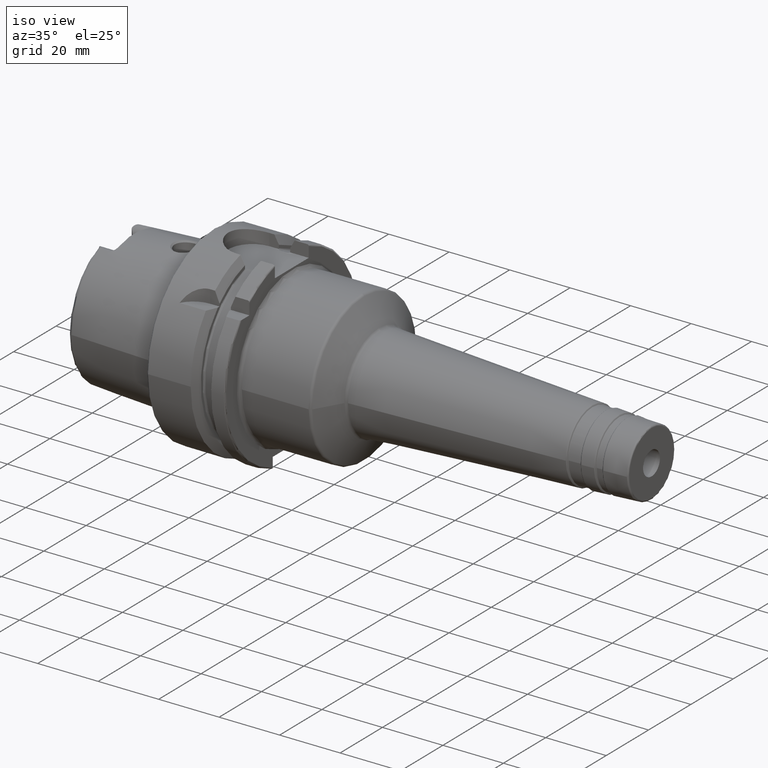
[diagram: clean part render]
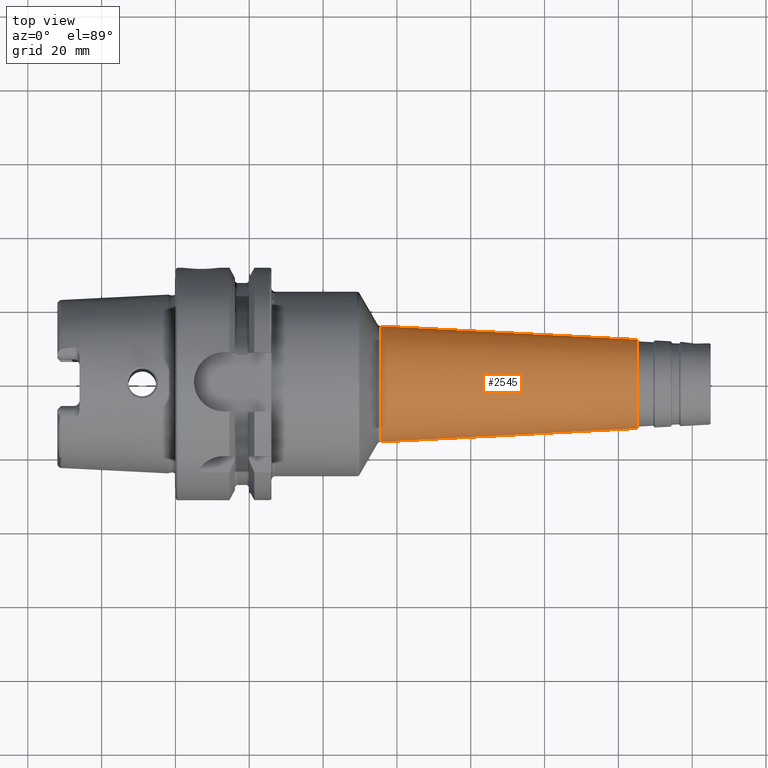
[diagram: tour spotlight — one face highlighted and labeled with its STEP entity id]
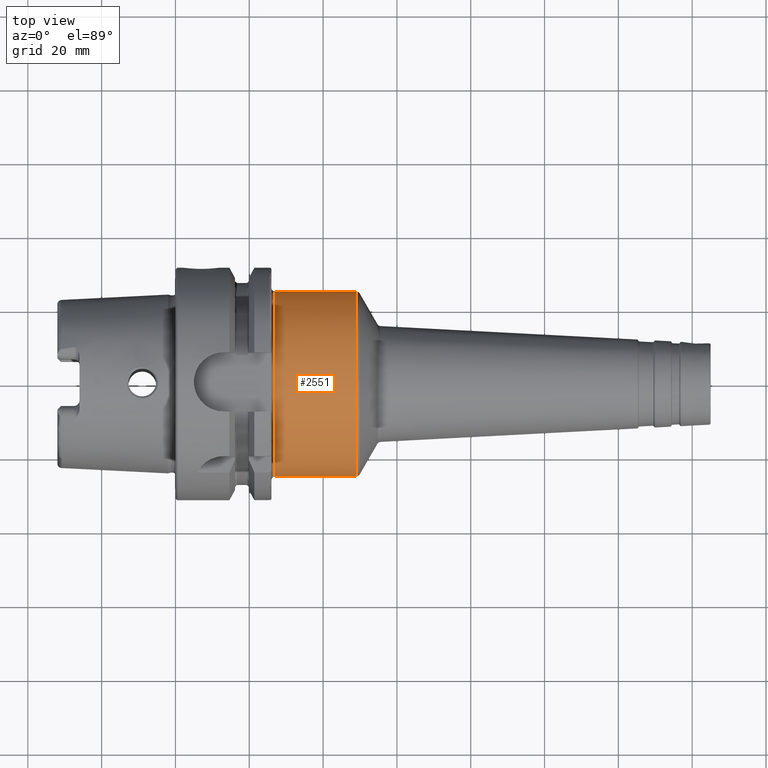
[diagram: tour spotlight — one face highlighted and labeled with its STEP entity id]
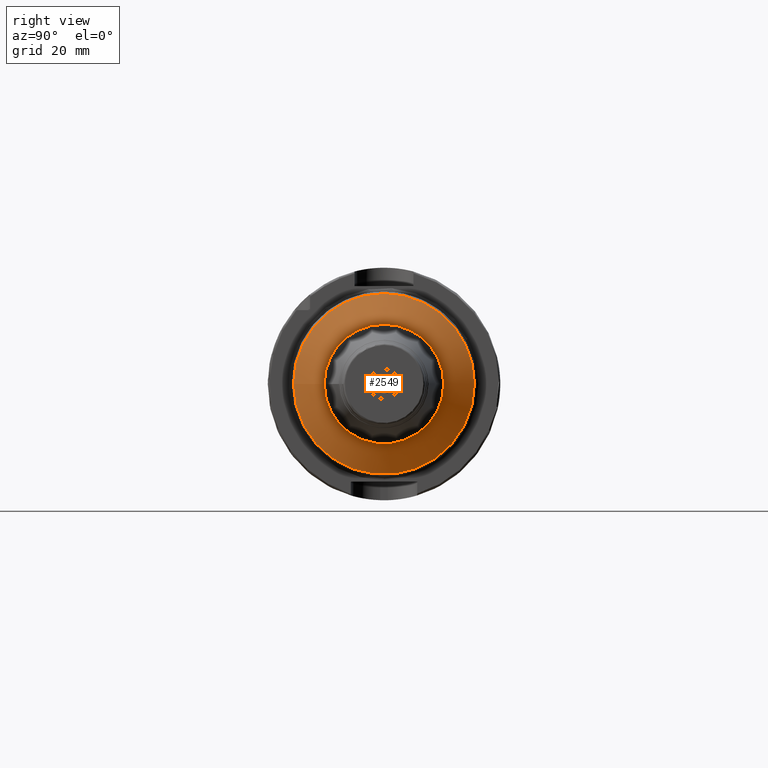
[diagram: tour spotlight — one face highlighted and labeled with its STEP entity id]
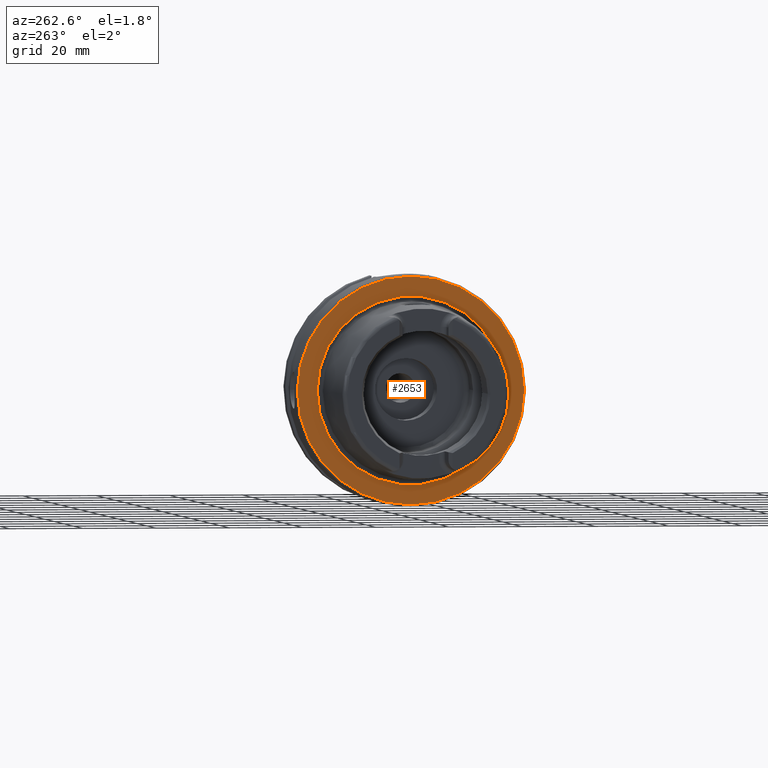
[diagram: tour spotlight — one face highlighted and labeled with its STEP entity id]
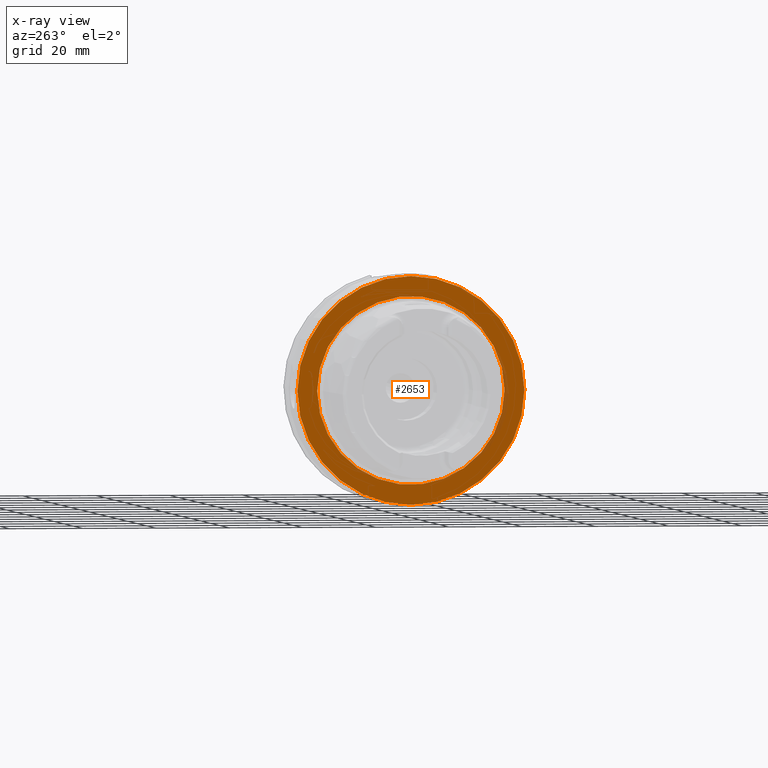
[diagram: x-ray of the same camera — body ghosted, this tour face saturated]
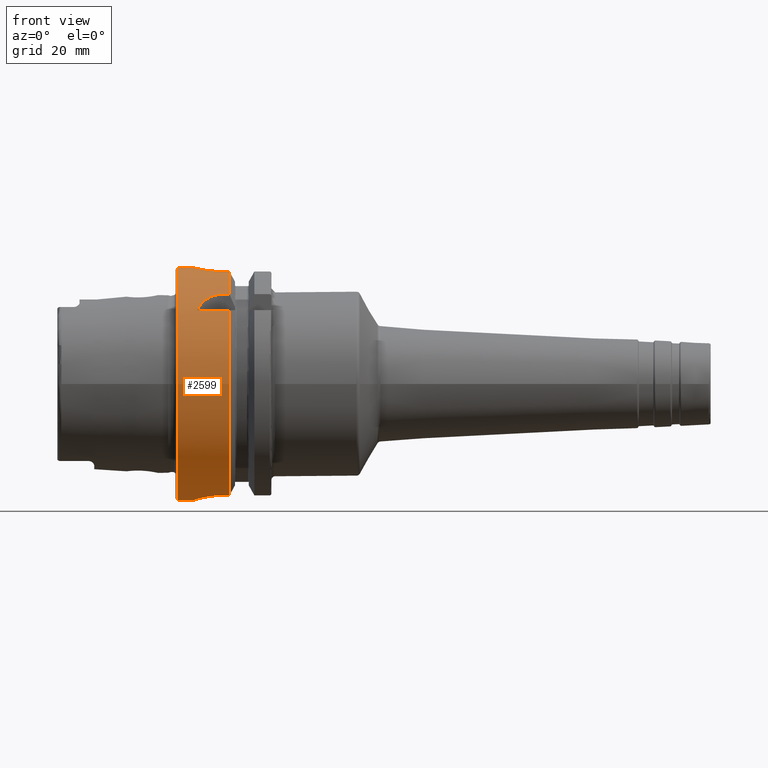
[diagram: tour spotlight — one face highlighted and labeled with its STEP entity id]
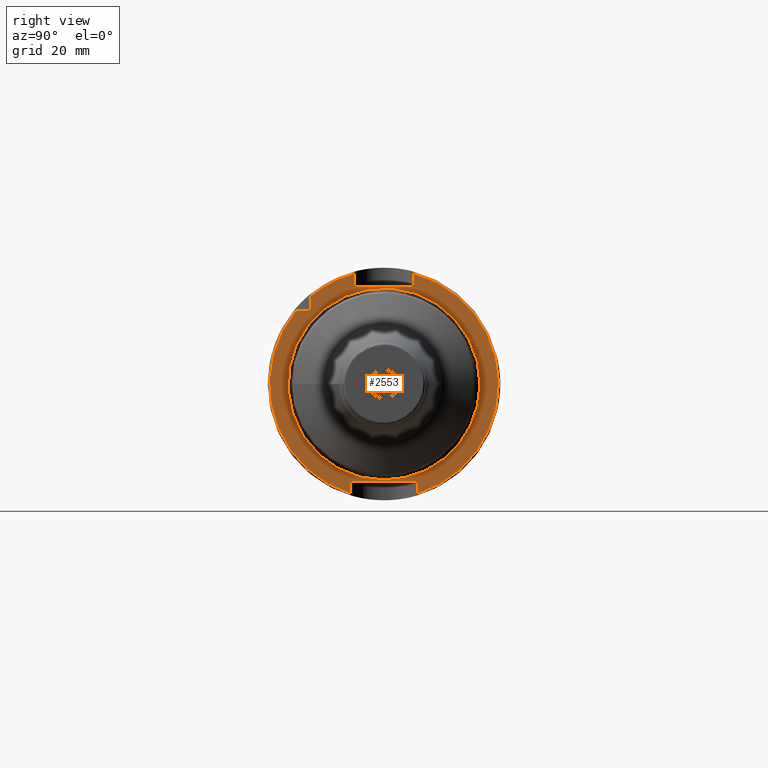
[diagram: tour spotlight — one face highlighted and labeled with its STEP entity id]
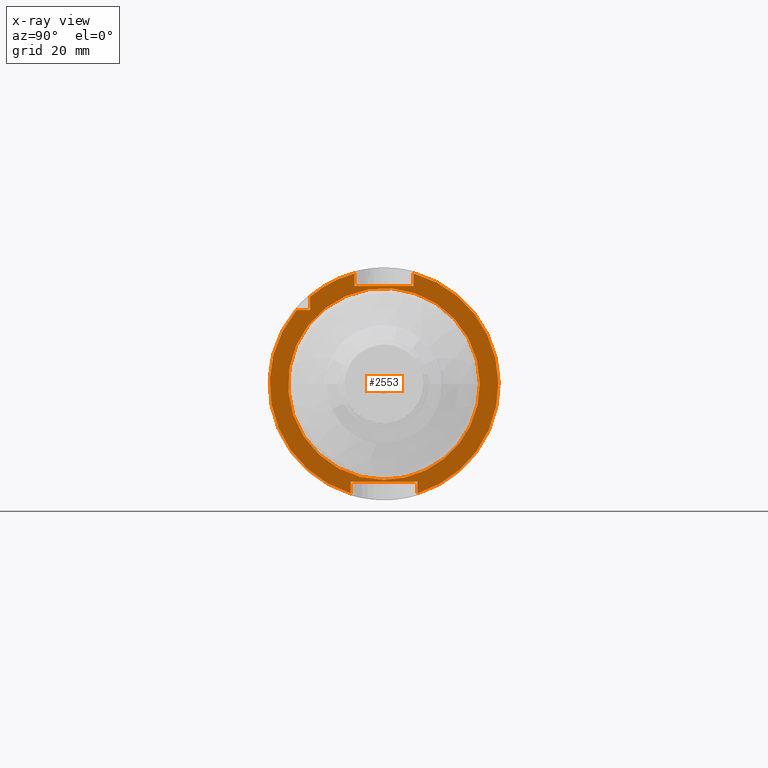
[diagram: x-ray of the same camera — body ghosted, this tour face saturated]
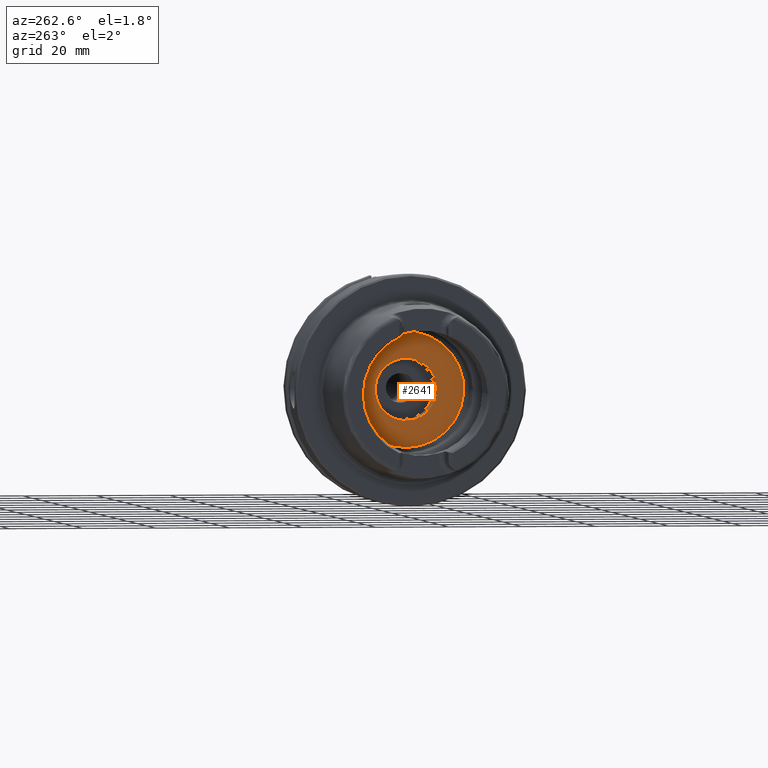
[diagram: tour spotlight — one face highlighted and labeled with its STEP entity id]
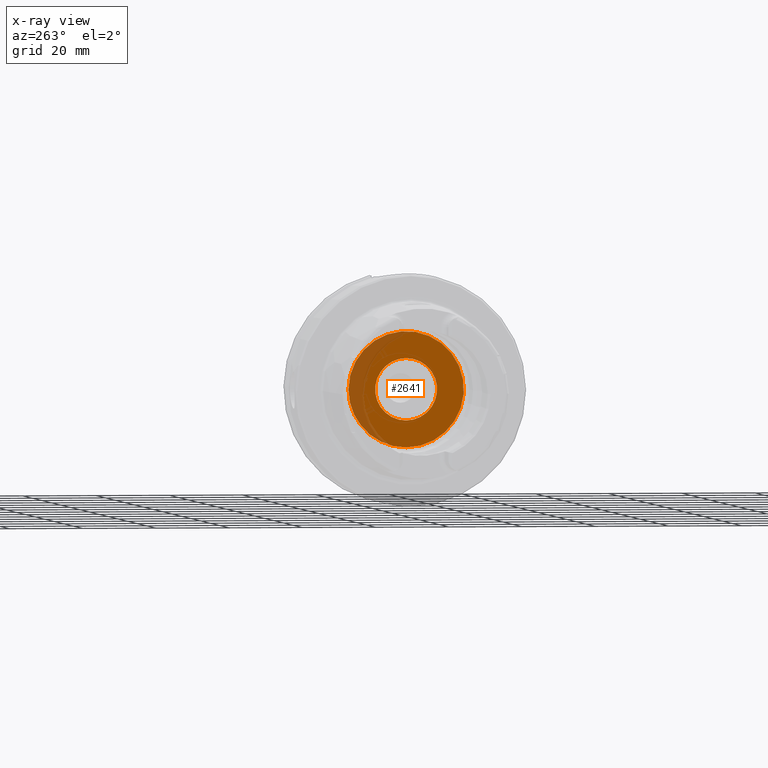
[diagram: x-ray of the same camera — body ghosted, this tour face saturated]
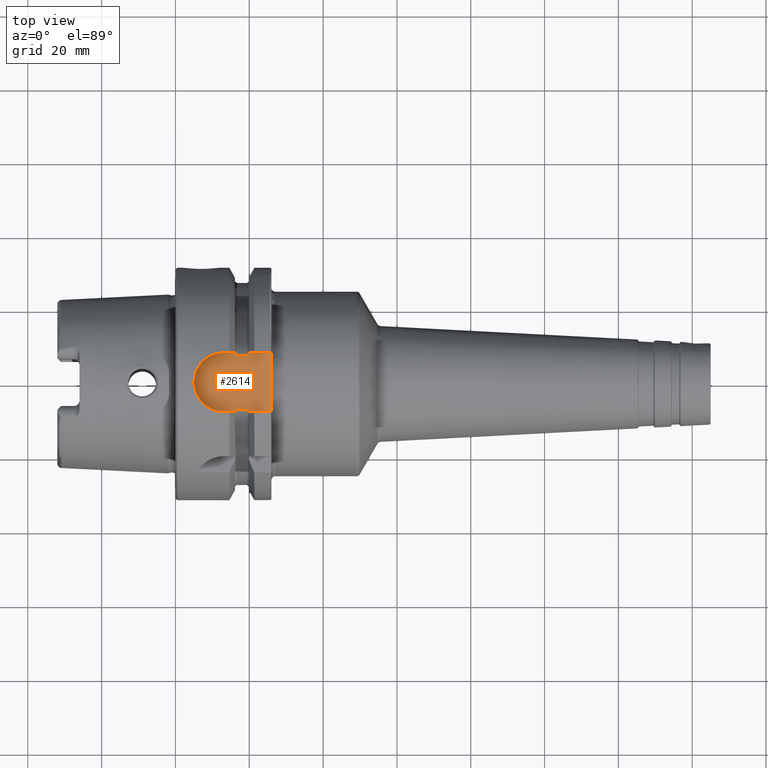
[diagram: tour spotlight — one face highlighted and labeled with its STEP entity id]
A machine part: a face-by-face anatomy tour. The part has 135 B-rep faces; the first image is the clean iso view, then the 8 largest visible faces are spotlighted one at a time (largest first), each with its STEP entity span.

Face 1 — top view, entity #2545. In plain terms, the highlighted conical surface has half-angle 3 deg.
Definition (entity closure, byte-faithful):
#192=CONICAL_SURFACE('',#2766,13.8757992308214,0.0523598775598299);
#226=FACE_OUTER_BOUND('',#361,.T.);
#361=EDGE_LOOP('',(#1799,#1800,#1801,#1802,#1803,#1804,#1805,#1806));
#499=LINE('',#4046,#616);
#616=VECTOR('',#3229,13.8757992308214);
#785=CIRCLE('',#2763,12.0469847975392);
#786=CIRCLE('',#2764,12.0469847975392);
#787=CIRCLE('',#2765,12.0469847975392);
#788=CIRCLE('',#2767,15.6882840297356);
#789=CIRCLE('',#2768,15.6882840297356);
#790=CIRCLE('',#2769,15.6882840297356);
#999=VERTEX_POINT('',#4037);
#1000=VERTEX_POINT('',#4039);
#1001=VERTEX_POINT('',#4041);
#1002=VERTEX_POINT('',#4045);
#1003=VERTEX_POINT('',#4047);
#1004=VERTEX_POINT('',#4049);
#1309=EDGE_CURVE('',#999,#1000,#785,.T.);
#1310=EDGE_CURVE('',#1000,#1001,#786,.T.);
#1311=EDGE_CURVE('',#1001,#999,#787,.T.);
#1312=EDGE_CURVE('',#1000,#1002,#499,.T.);
#1313=EDGE_CURVE('',#1003,#1002,#788,.T.);
#1314=EDGE_CURVE('',#1004,#1003,#789,.T.);
#1315=EDGE_CURVE('',#1002,#1004,#790,.T.);
#1799=ORIENTED_EDGE('',*,*,#1311,.F.);
#1800=ORIENTED_EDGE('',*,*,#1310,.F.);
#1801=ORIENTED_EDGE('',*,*,#1312,.T.);
#1802=ORIENTED_EDGE('',*,*,#1313,.F.);
#1803=ORIENTED_EDGE('',*,*,#1314,.F.);
#1804=ORIENTED_EDGE('',*,*,#1315,.F.);
#1805=ORIENTED_EDGE('',*,*,#1312,.F.);
#1806=ORIENTED_EDGE('',*,*,#1309,.F.);
#2545=ADVANCED_FACE('',(#226),#192,.T.);
#2763=AXIS2_PLACEMENT_3D('',#4040,#3221,#3222);
#2764=AXIS2_PLACEMENT_3D('',#4042,#3223,#3224);
#2765=AXIS2_PLACEMENT_3D('',#4043,#3225,#3226);
#2766=AXIS2_PLACEMENT_3D('',#4044,#3227,#3228);
#2767=AXIS2_PLACEMENT_3D('',#4048,#3230,#3231);
#2768=AXIS2_PLACEMENT_3D('',#4050,#3232,#3233);
#2769=AXIS2_PLACEMENT_3D('',#4051,#3234,#3235);
#3221=DIRECTION('center_axis',(1.,0.,0.));
#3222=DIRECTION('ref_axis',(0.,-1.,3.06161699786838E-17));
#3223=DIRECTION('center_axis',(1.,0.,0.));
#3224=DIRECTION('ref_axis',(0.,-1.,3.06161699786838E-17));
#3225=DIRECTION('center_axis',(1.,0.,0.));
#3226=DIRECTION('ref_axis',(0.,-1.,3.06161699786838E-17));
#3227=DIRECTION('center_axis',(-1.,0.,0.));
#3228=DIRECTION('ref_axis',(0.,1.,0.));
#3229=DIRECTION('',(-0.998629534754574,-0.0523359562429438,-6.40930612932371E-18));
#3230=DIRECTION('center_axis',(-1.,0.,0.));
#3231=DIRECTION('ref_axis',(0.,-1.,3.06161699786838E-17));
#3232=DIRECTION('center_axis',(-1.,0.,0.));
#3233=DIRECTION('ref_axis',(0.,-1.,3.06161699786838E-17));
#3234=DIRECTION('center_axis',(-1.,0.,0.));
#3235=DIRECTION('ref_axis',(0.,-1.,3.06161699786838E-17));
#4037=CARTESIAN_POINT('',(125.022339968181,-1.47533013716832E-15,12.0469847975392));
#4039=CARTESIAN_POINT('',(125.022339968181,-12.0469847975392,-1.47533013716832E-15));
#4040=CARTESIAN_POINT('Origin',(125.022339968181,0.,-1.8441626714604E-15));
#4041=CARTESIAN_POINT('',(125.022339968181,12.0469847975392,-7.3766506858416E-16));
#4042=CARTESIAN_POINT('Origin',(125.022339968181,0.,-1.8441626714604E-15));
#4043=CARTESIAN_POINT('Origin',(125.022339968181,0.,-1.8441626714604E-15));
#4044=CARTESIAN_POINT('Origin',(90.1264817902328,0.,0.));
#4045=CARTESIAN_POINT('',(55.5422115977223,-15.6882840297356,-1.92126068211302E-15));
#4046=CARTESIAN_POINT('',(90.1264817902328,-13.8757992308214,-1.69929531136368E-15));
#4047=CARTESIAN_POINT('',(55.5422115977223,15.6882840297356,-4.80315170528255E-15));
#4048=CARTESIAN_POINT('Origin',(55.5422115977223,0.,-2.40157585264128E-15));
#4049=CARTESIAN_POINT('',(55.5422115977223,-1.92126068211302E-15,15.6882840297356));
#4050=CARTESIAN_POINT('Origin',(55.5422115977223,0.,-2.40157585264128E-15));
#4051=CARTESIAN_POINT('Origin',(55.5422115977223,0.,-2.40157585264128E-15));

Face 2 — top view, entity #2551. In plain terms, the highlighted cylindrical surface (bore or boss wall) has radius 25 mm, axis along (1, 0, 0).
Definition (entity closure, byte-faithful):
#232=FACE_OUTER_BOUND('',#368,.T.);
#368=EDGE_LOOP('',(#1842,#1843,#1844,#1845,#1846,#1847,#1848,#1849));
#501=LINE('',#4089,#618);
#618=VECTOR('',#3281,25.);
#804=CIRCLE('',#2788,25.);
#805=CIRCLE('',#2789,25.);
#806=CIRCLE('',#2790,25.);
#807=CIRCLE('',#2792,25.);
#808=CIRCLE('',#2793,25.);
#809=CIRCLE('',#2794,25.);
#1015=VERTEX_POINT('',#4080);
#1016=VERTEX_POINT('',#4082);
#1017=VERTEX_POINT('',#4084);
#1018=VERTEX_POINT('',#4088);
#1019=VERTEX_POINT('',#4090);
#1020=VERTEX_POINT('',#4092);
#1330=EDGE_CURVE('',#1015,#1016,#804,.T.);
#1331=EDGE_CURVE('',#1016,#1017,#805,.T.);
#1332=EDGE_CURVE('',#1017,#1015,#806,.T.);
#1333=EDGE_CURVE('',#1016,#1018,#501,.T.);
#1334=EDGE_CURVE('',#1019,#1018,#807,.T.);
#1335=EDGE_CURVE('',#1020,#1019,#808,.T.);
#1336=EDGE_CURVE('',#1018,#1020,#809,.T.);
#1842=ORIENTED_EDGE('',*,*,#1332,.F.);
#1843=ORIENTED_EDGE('',*,*,#1331,.F.);
#1844=ORIENTED_EDGE('',*,*,#1333,.T.);
#1845=ORIENTED_EDGE('',*,*,#1334,.F.);
#1846=ORIENTED_EDGE('',*,*,#1335,.F.);
#1847=ORIENTED_EDGE('',*,*,#1336,.F.);
#1848=ORIENTED_EDGE('',*,*,#1333,.F.);
#1849=ORIENTED_EDGE('',*,*,#1330,.F.);
#2494=CYLINDRICAL_SURFACE('',#2791,25.);
#2551=ADVANCED_FACE('',(#232),#2494,.T.);
#2788=AXIS2_PLACEMENT_3D('',#4083,#3273,#3274);
#2789=AXIS2_PLACEMENT_3D('',#4085,#3275,#3276);
#2790=AXIS2_PLACEMENT_3D('',#4086,#3277,#3278);
#2791=AXIS2_PLACEMENT_3D('',#4087,#3279,#3280);
#2792=AXIS2_PLACEMENT_3D('',#4091,#3282,#3283);
#2793=AXIS2_PLACEMENT_3D('',#4093,#3284,#3285);
#2794=AXIS2_PLACEMENT_3D('',#4094,#3286,#3287);
#3273=DIRECTION('center_axis',(1.,0.,0.));
#3274=DIRECTION('ref_axis',(0.,-1.,1.83697019872103E-16));
#3275=DIRECTION('center_axis',(1.,0.,0.));
#3276=DIRECTION('ref_axis',(0.,-1.,1.83697019872103E-16));
#3277=DIRECTION('center_axis',(1.,0.,0.));
#3278=DIRECTION('ref_axis',(0.,-1.,1.83697019872103E-16));
#3279=DIRECTION('center_axis',(1.,0.,0.));
#3280=DIRECTION('ref_axis',(0.,1.,0.));
#3281=DIRECTION('',(-1.,0.,0.));
#3282=DIRECTION('center_axis',(-1.,0.,0.));
#3283=DIRECTION('ref_axis',(0.,-1.,-1.22464679914735E-16));
#3284=DIRECTION('center_axis',(-1.,0.,0.));
#3285=DIRECTION('ref_axis',(0.,-1.,-1.22464679914735E-16));
#3286=DIRECTION('center_axis',(-1.,0.,0.));
#3287=DIRECTION('ref_axis',(0.,-1.,-1.22464679914735E-16));
#4080=CARTESIAN_POINT('',(49.0629340550581,-3.06161699786838E-15,25.));
#4082=CARTESIAN_POINT('',(49.0629340550581,-25.,-3.06161699786838E-15));
#4083=CARTESIAN_POINT('Origin',(49.0629340550581,0.,0.));
#4084=CARTESIAN_POINT('',(49.0629340550581,25.,-1.53080849893419E-15));
#4085=CARTESIAN_POINT('Origin',(49.0629340550581,0.,0.));
#4086=CARTESIAN_POINT('Origin',(49.0629340550581,0.,0.));
#4087=CARTESIAN_POINT('Origin',(37.8201421621239,0.,0.));
#4088=CARTESIAN_POINT('',(27.,-25.,-3.06161699786838E-15));
#4089=CARTESIAN_POINT('',(37.8201421621239,-25.,-3.06161699786838E-15));
#4090=CARTESIAN_POINT('',(27.,-3.06161699786838E-15,-25.));
#4091=CARTESIAN_POINT('Origin',(27.,0.,0.));
#4092=CARTESIAN_POINT('',(27.,25.,0.));
#4093=CARTESIAN_POINT('Origin',(27.,0.,0.));
#4094=CARTESIAN_POINT('Origin',(27.,0.,0.));

Face 3 — right view, entity #2549. In plain terms, the highlighted conical surface has half-angle 60 deg.
Definition (entity closure, byte-faithful):
#193=CONICAL_SURFACE('',#2782,20.3583500677369,1.0471975511966);
#230=FACE_OUTER_BOUND('',#366,.T.);
#366=EDGE_LOOP('',(#1826,#1827,#1828,#1829,#1830,#1831,#1832,#1833));
#500=LINE('',#4073,#617);
#617=VECTOR('',#3262,20.3583500677369);
#796=CIRCLE('',#2778,16.1869135644901);
#798=CIRCLE('',#2780,16.1869135644901);
#799=CIRCLE('',#2781,16.1869135644901);
#800=CIRCLE('',#2783,24.5);
#801=CIRCLE('',#2784,24.5);
#802=CIRCLE('',#2785,24.5);
#1009=VERTEX_POINT('',#4064);
#1010=VERTEX_POINT('',#4065);
#1011=VERTEX_POINT('',#4068);
#1012=VERTEX_POINT('',#4072);
#1013=VERTEX_POINT('',#4074);
#1014=VERTEX_POINT('',#4076);
#1321=EDGE_CURVE('',#1009,#1010,#796,.T.);
#1323=EDGE_CURVE('',#1010,#1011,#798,.T.);
#1324=EDGE_CURVE('',#1011,#1009,#799,.T.);
#1325=EDGE_CURVE('',#1011,#1012,#500,.T.);
#1326=EDGE_CURVE('',#1013,#1012,#800,.T.);
#1327=EDGE_CURVE('',#1014,#1013,#801,.T.);
#1328=EDGE_CURVE('',#1012,#1014,#802,.T.);
#1826=ORIENTED_EDGE('',*,*,#1321,.F.);
#1827=ORIENTED_EDGE('',*,*,#1324,.F.);
#1828=ORIENTED_EDGE('',*,*,#1325,.T.);
#1829=ORIENTED_EDGE('',*,*,#1326,.F.);
#1830=ORIENTED_EDGE('',*,*,#1327,.F.);
#1831=ORIENTED_EDGE('',*,*,#1328,.F.);
#1832=ORIENTED_EDGE('',*,*,#1325,.F.);
#1833=ORIENTED_EDGE('',*,*,#1323,.F.);
#2549=ADVANCED_FACE('',(#230),#193,.T.);
#2778=AXIS2_PLACEMENT_3D('',#4066,#3252,#3253);
#2780=AXIS2_PLACEMENT_3D('',#4069,#3256,#3257);
#2781=AXIS2_PLACEMENT_3D('',#4070,#3258,#3259);
#2782=AXIS2_PLACEMENT_3D('',#4071,#3260,#3261);
#2783=AXIS2_PLACEMENT_3D('',#4075,#3263,#3264);
#2784=AXIS2_PLACEMENT_3D('',#4077,#3265,#3266);
#2785=AXIS2_PLACEMENT_3D('',#4078,#3267,#3268);
#3252=DIRECTION('center_axis',(1.,0.,0.));
#3253=DIRECTION('ref_axis',(0.,-1.,3.06161699786838E-17));
#3256=DIRECTION('center_axis',(1.,0.,0.));
#3257=DIRECTION('ref_axis',(0.,-1.,3.06161699786838E-17));
#3258=DIRECTION('center_axis',(1.,0.,0.));
#3259=DIRECTION('ref_axis',(0.,-1.,3.06161699786838E-17));
#3260=DIRECTION('center_axis',(-1.,0.,0.));
#3261=DIRECTION('ref_axis',(0.,1.,0.));
#3262=DIRECTION('',(-0.5,-0.866025403784438,-1.06057523872491E-16));
#3263=DIRECTION('center_axis',(-1.,0.,0.));
#3264=DIRECTION('ref_axis',(0.,-1.,3.06161699786838E-17));
#3265=DIRECTION('center_axis',(-1.,0.,0.));
#3266=DIRECTION('ref_axis',(0.,-1.,3.06161699786838E-17));
#3267=DIRECTION('center_axis',(-1.,0.,0.));
#3268=DIRECTION('ref_axis',(0.,-1.,3.06161699786838E-17));
#4064=CARTESIAN_POINT('',(54.7285221501808,16.1869135644901,-9.91162594241387E-16));
#4065=CARTESIAN_POINT('',(54.7285221501808,-1.98232518848277E-15,16.1869135644901));
#4066=CARTESIAN_POINT('Origin',(54.7285221501808,0.,-2.47790648560347E-15));
#4068=CARTESIAN_POINT('',(54.7285221501808,-16.1869135644901,-1.98232518848277E-15));
#4069=CARTESIAN_POINT('Origin',(54.7285221501808,0.,-2.47790648560347E-15));
#4070=CARTESIAN_POINT('Origin',(54.7285221501808,0.,-2.47790648560347E-15));
#4071=CARTESIAN_POINT('Origin',(52.3201421621239,0.,0.));
#4072=CARTESIAN_POINT('',(49.9289594588425,-24.5,-3.00038465791102E-15));
#4073=CARTESIAN_POINT('',(52.3201421621239,-20.3583500677369,-2.49317882463752E-15));
#4074=CARTESIAN_POINT('',(49.9289594588425,24.5,-7.50096164477754E-15));
#4075=CARTESIAN_POINT('Origin',(49.9289594588425,0.,-3.75048082238877E-15));
#4076=CARTESIAN_POINT('',(49.9289594588425,-3.00038465791102E-15,24.5));
#4077=CARTESIAN_POINT('Origin',(49.9289594588425,0.,-3.75048082238877E-15));
#4078=CARTESIAN_POINT('Origin',(49.9289594588425,0.,-3.75048082238877E-15));

Face 4 — auxiliary view, entity #2653. An x-ray twin of the same camera follows (body ghosted, this face saturated) — the face is partly hidden behind the body. In plain terms, the highlighted planar face has unit normal (-1, 0, 0).
Definition (entity closure, byte-faithful):
#107=FACE_BOUND('',#480,.T.);
#148=PLANE('',#3029);
#334=FACE_OUTER_BOUND('',#479,.T.);
#479=EDGE_LOOP('',(#2456,#2457));
#480=EDGE_LOOP('',(#2458,#2459));
#935=CIRCLE('',#3027,25.5879092835167);
#936=CIRCLE('',#3028,25.5879092835167);
#937=CIRCLE('',#3030,31.);
#938=CIRCLE('',#3031,31.);
#1231=VERTEX_POINT('',#5532);
#1232=VERTEX_POINT('',#5534);
#1233=VERTEX_POINT('',#5538);
#1234=VERTEX_POINT('',#5539);
#1644=EDGE_CURVE('',#1232,#1231,#935,.T.);
#1645=EDGE_CURVE('',#1231,#1232,#936,.T.);
#1646=EDGE_CURVE('',#1233,#1234,#937,.T.);
#1647=EDGE_CURVE('',#1234,#1233,#938,.T.);
#2456=ORIENTED_EDGE('',*,*,#1646,.F.);
#2457=ORIENTED_EDGE('',*,*,#1647,.F.);
#2458=ORIENTED_EDGE('',*,*,#1644,.T.);
#2459=ORIENTED_EDGE('',*,*,#1645,.T.);
#2653=ADVANCED_FACE('',(#334,#107),#148,.T.);
#3027=AXIS2_PLACEMENT_3D('',#5535,#3854,#3855);
#3028=AXIS2_PLACEMENT_3D('',#5536,#3856,#3857);
#3029=AXIS2_PLACEMENT_3D('',#5537,#3858,#3859);
#3030=AXIS2_PLACEMENT_3D('',#5540,#3860,#3861);
#3031=AXIS2_PLACEMENT_3D('',#5541,#3862,#3863);
#3854=DIRECTION('center_axis',(1.,0.,0.));
#3855=DIRECTION('ref_axis',(0.,0.,-1.));
#3856=DIRECTION('center_axis',(1.,0.,0.));
#3857=DIRECTION('ref_axis',(0.,0.,-1.));
#3858=DIRECTION('center_axis',(-1.,0.,0.));
#3859=DIRECTION('ref_axis',(0.,0.,1.));
#3860=DIRECTION('center_axis',(1.,0.,0.));
#3861=DIRECTION('ref_axis',(0.,0.,-1.));
#3862=DIRECTION('center_axis',(1.,0.,0.));
#3863=DIRECTION('ref_axis',(0.,0.,-1.));
#5532=CARTESIAN_POINT('',(-9.0205620750794E-16,-25.5879092835167,-3.13361512009315E-15));
#5534=CARTESIAN_POINT('',(0.,25.5879092835167,0.));
#5535=CARTESIAN_POINT('Origin',(0.,0.,0.));
#5536=CARTESIAN_POINT('Origin',(0.,0.,0.));
#5537=CARTESIAN_POINT('Origin',(0.,31.,0.));
#5538=CARTESIAN_POINT('',(0.,31.,0.));
#5539=CARTESIAN_POINT('',(-1.04083408558608E-15,-31.,-3.7964050773568E-15));
#5540=CARTESIAN_POINT('Origin',(0.,0.,0.));
#5541=CARTESIAN_POINT('Origin',(0.,0.,0.));

Face 5 — front view, entity #2599. In plain terms, the highlighted cylindrical surface (bore or boss wall) has radius 31.5 mm, axis along (1, 0, 0).
Definition (entity closure, byte-faithful):
#56=B_SPLINE_CURVE_WITH_KNOTS('',3,(#4848,#4849,#4850,#4851,#4852,#4853,
#4854,#4855,#4856,#4857,#4858,#4859,#4860,#4861,#4862,#4863,#4864,#4865,
#4866,#4867,#4868,#4869,#4870,#4871,#4872,#4873),.UNSPECIFIED.,.F.,.F.,
(4,2,2,2,2,2,2,2,2,2,2,2,4),(0.,0.188688694287611,0.377377388575223,0.56606194688798,
0.754746505200737,0.943431063513494,1.13211562182625,1.32080431611386,1.50949301040147,
1.69818170468908,1.8868703989767,2.07555495728945,2.26423951560221),
 .UNSPECIFIED.);
#57=B_SPLINE_CURVE_WITH_KNOTS('',3,(#4874,#4875,#4876,#4877,#4878,#4879,
#4880,#4881,#4882,#4883),.UNSPECIFIED.,.F.,.F.,(4,2,2,2,4),(2.26423951560221,
2.45292407391497,2.64160863222772,2.83029732651534,3.01898602080295),
 .UNSPECIFIED.);
#60=B_SPLINE_CURVE_WITH_KNOTS('',3,(#4939,#4940,#4941,#4942,#4943,#4944,
#4945,#4946,#4947,#4948,#4949,#4950),.UNSPECIFIED.,.F.,.F.,(4,2,2,2,2,4),
(1.1085154204615,1.31979218709236,1.52798350480179,1.73617482251122,1.90421770126337,
2.07226058001552),.UNSPECIFIED.);
#65=B_SPLINE_CURVE_WITH_KNOTS('',3,(#5055,#5056,#5057,#5058,#5059,#5060,
#5061,#5062,#5063,#5064),.UNSPECIFIED.,.F.,.F.,(4,2,2,2,4),(0.,0.30293011231322,
0.605860224626439,0.90976031392917,1.2136604032319),.UNSPECIFIED.);
#66=B_SPLINE_CURVE_WITH_KNOTS('',3,(#5076,#5077,#5078,#5079,#5080,#5081,
#5082,#5083,#5084,#5085),.UNSPECIFIED.,.F.,.F.,(4,2,2,2,4),(1.20927420824097,
1.5131742975437,1.81707438684643,2.12000449915965,2.42293461147287),
 .UNSPECIFIED.);
#74=B_SPLINE_CURVE_WITH_KNOTS('',3,(#5173,#5174,#5175,#5176,#5177,#5178,
#5179,#5180,#5181,#5182,#5183,#5184,#5185,#5186,#5187,#5188,#5189,#5190),
 .UNSPECIFIED.,.F.,.F.,(4,2,2,2,2,2,2,2,4),(0.,0.302805879979318,0.605611759958635,
0.908372461246501,1.21113316253437,1.51389386382223,1.8166545651101,2.11946044508942,
2.42226632506874),.UNSPECIFIED.);
#103=FACE_BOUND('',#422,.T.);
#280=FACE_OUTER_BOUND('',#421,.T.);
#421=EDGE_LOOP('',(#2146,#2147,#2148,#2149,#2150,#2151,#2152,#2153,#2154,
#2155,#2156,#2157,#2158,#2159,#2160,#2161,#2162,#2163,#2164));
#422=EDGE_LOOP('',(#2165,#2166));
#544=LINE('',#4914,#661);
#549=LINE('',#4959,#666);
#560=LINE('',#5047,#677);
#568=LINE('',#5113,#685);
#572=LINE('',#5171,#689);
#573=LINE('',#5192,#690);
#574=LINE('',#5195,#691);
#661=VECTOR('',#3498,10.);
#666=VECTOR('',#3509,10.);
#677=VECTOR('',#3556,10.);
#685=VECTOR('',#3580,10.);
#689=VECTOR('',#3590,10.);
#690=VECTOR('',#3591,10.);
#691=VECTOR('',#3594,31.5);
#861=CIRCLE('',#2887,31.5);
#862=CIRCLE('',#2888,31.5);
#869=CIRCLE('',#2903,31.5);
#871=CIRCLE('',#2910,31.5);
#872=CIRCLE('',#2911,31.5);
#873=CIRCLE('',#2912,31.5);
#874=CIRCLE('',#2913,31.5);
#1114=VERTEX_POINT('',#4845);
#1115=VERTEX_POINT('',#4847);
#1123=VERTEX_POINT('',#4911);
#1124=VERTEX_POINT('',#4913);
#1128=VERTEX_POINT('',#4938);
#1130=VERTEX_POINT('',#4955);
#1135=VERTEX_POINT('',#4971);
#1136=VERTEX_POINT('',#4973);
#1151=VERTEX_POINT('',#5044);
#1152=VERTEX_POINT('',#5046);
#1154=VERTEX_POINT('',#5054);
#1156=VERTEX_POINT('',#5069);
#1158=VERTEX_POINT('',#5075);
#1168=VERTEX_POINT('',#5168);
#1169=VERTEX_POINT('',#5170);
#1170=VERTEX_POINT('',#5172);
#1171=VERTEX_POINT('',#5191);
#1172=VERTEX_POINT('',#5194);
#1173=VERTEX_POINT('',#5196);
#1456=EDGE_CURVE('',#1115,#1114,#56,.T.);
#1457=EDGE_CURVE('',#1114,#1115,#57,.T.);
#1466=EDGE_CURVE('',#1124,#1123,#544,.T.);
#1472=EDGE_CURVE('',#1123,#1128,#60,.T.);
#1476=EDGE_CURVE('',#1128,#1130,#549,.T.);
#1482=EDGE_CURVE('',#1124,#1135,#861,.T.);
#1483=EDGE_CURVE('',#1135,#1136,#862,.T.);
#1504=EDGE_CURVE('',#1152,#1151,#560,.T.);
#1507=EDGE_CURVE('',#1151,#1154,#65,.T.);
#1510=EDGE_CURVE('',#1154,#1156,#869,.T.);
#1513=EDGE_CURVE('',#1156,#1158,#66,.T.);
#1521=EDGE_CURVE('',#1158,#1136,#568,.T.);
#1530=EDGE_CURVE('',#1168,#1130,#871,.T.);
#1531=EDGE_CURVE('',#1168,#1169,#572,.T.);
#1532=EDGE_CURVE('',#1169,#1170,#74,.T.);
#1533=EDGE_CURVE('',#1170,#1171,#573,.T.);
#1534=EDGE_CURVE('',#1152,#1171,#872,.T.);
#1535=EDGE_CURVE('',#1135,#1172,#574,.T.);
#1536=EDGE_CURVE('',#1172,#1173,#873,.T.);
#1537=EDGE_CURVE('',#1173,#1172,#874,.T.);
#2146=ORIENTED_EDGE('',*,*,#1476,.T.);
#2147=ORIENTED_EDGE('',*,*,#1530,.F.);
#2148=ORIENTED_EDGE('',*,*,#1531,.T.);
#2149=ORIENTED_EDGE('',*,*,#1532,.T.);
#2150=ORIENTED_EDGE('',*,*,#1533,.T.);
#2151=ORIENTED_EDGE('',*,*,#1534,.F.);
#2152=ORIENTED_EDGE('',*,*,#1504,.T.);
#2153=ORIENTED_EDGE('',*,*,#1507,.T.);
#2154=ORIENTED_EDGE('',*,*,#1510,.T.);
#2155=ORIENTED_EDGE('',*,*,#1513,.T.);
#2156=ORIENTED_EDGE('',*,*,#1521,.T.);
#2157=ORIENTED_EDGE('',*,*,#1483,.F.);
#2158=ORIENTED_EDGE('',*,*,#1535,.T.);
#2159=ORIENTED_EDGE('',*,*,#1536,.T.);
#2160=ORIENTED_EDGE('',*,*,#1537,.T.);
#2161=ORIENTED_EDGE('',*,*,#1535,.F.);
#2162=ORIENTED_EDGE('',*,*,#1482,.F.);
#2163=ORIENTED_EDGE('',*,*,#1466,.T.);
#2164=ORIENTED_EDGE('',*,*,#1472,.T.);
#2165=ORIENTED_EDGE('',*,*,#1456,.T.);
#2166=ORIENTED_EDGE('',*,*,#1457,.T.);
#2508=CYLINDRICAL_SURFACE('',#2909,31.5);
#2599=ADVANCED_FACE('',(#280,#103),#2508,.T.);
#2887=AXIS2_PLACEMENT_3D('',#4972,#3522,#3523);
#2888=AXIS2_PLACEMENT_3D('',#4974,#3524,#3525);
#2903=AXIS2_PLACEMENT_3D('',#5070,#3565,#3566);
#2909=AXIS2_PLACEMENT_3D('',#5167,#3586,#3587);
#2910=AXIS2_PLACEMENT_3D('',#5169,#3588,#3589);
#2911=AXIS2_PLACEMENT_3D('',#5193,#3592,#3593);
#2912=AXIS2_PLACEMENT_3D('',#5197,#3595,#3596);
#2913=AXIS2_PLACEMENT_3D('',#5198,#3597,#3598);
#3498=DIRECTION('',(-1.,0.,0.));
#3509=DIRECTION('',(1.,0.,0.));
#3522=DIRECTION('center_axis',(1.,0.,0.));
#3523=DIRECTION('ref_axis',(0.,0.,-1.));
#3524=DIRECTION('center_axis',(1.,0.,0.));
#3525=DIRECTION('ref_axis',(0.,0.,-1.));
#3556=DIRECTION('',(-1.,0.,0.));
#3565=DIRECTION('center_axis',(-1.,0.,0.));
#3566=DIRECTION('ref_axis',(0.,1.,0.));
#3580=DIRECTION('',(1.,0.,0.));
#3586=DIRECTION('center_axis',(1.,0.,0.));
#3587=DIRECTION('ref_axis',(0.,1.,0.));
#3588=DIRECTION('center_axis',(1.,0.,0.));
#3589=DIRECTION('ref_axis',(0.,0.,-1.));
#3590=DIRECTION('',(-1.,0.,0.));
#3591=DIRECTION('',(1.,0.,0.));
#3592=DIRECTION('center_axis',(1.,0.,0.));
#3593=DIRECTION('ref_axis',(0.,0.,-1.));
#3594=DIRECTION('',(-1.,0.,0.));
#3595=DIRECTION('center_axis',(1.,0.,0.));
#3596=DIRECTION('ref_axis',(0.,0.,-1.));
#3597=DIRECTION('center_axis',(1.,0.,0.));
#3598=DIRECTION('ref_axis',(0.,0.,-1.));
#4845=CARTESIAN_POINT('',(12.,31.5,-6.12323399573677E-16));
#4847=CARTESIAN_POINT('',(7.,31.100643080168,5.));
#4848=CARTESIAN_POINT('Ctrl Pts',(7.,31.100643080168,5.));
#4849=CARTESIAN_POINT('Ctrl Pts',(6.37103768570796,31.100643080168,5.));
#4850=CARTESIAN_POINT('Ctrl Pts',(5.70089281579202,31.1216953112949,4.87408354368814));
#4851=CARTESIAN_POINT('Ctrl Pts',(4.46931934300962,31.1973810209855,4.36348784122736));
#4852=CARTESIAN_POINT('Ctrl Pts',(3.90779781350673,31.2508828501623,3.97886562537221));
#4853=CARTESIAN_POINT('Ctrl Pts',(3.021144092268,31.3510329557602,3.09221190413348));
#4854=CARTESIAN_POINT('Ctrl Pts',(2.63651425348544,31.4042391414288,2.5306861925578));
#4855=CARTESIAN_POINT('Ctrl Pts',(2.12591301120586,31.4792463697936,1.29909839144709));
#4856=CARTESIAN_POINT('Ctrl Pts',(2.,31.5,0.62894852770919));
#4857=CARTESIAN_POINT('Ctrl Pts',(2.,31.5,-0.62894852770919));
#4858=CARTESIAN_POINT('Ctrl Pts',(2.12591301120586,31.4792463697936,-1.29909839144709));
#4859=CARTESIAN_POINT('Ctrl Pts',(2.63651425348544,31.4042391414288,-2.5306861925578));
#4860=CARTESIAN_POINT('Ctrl Pts',(3.021144092268,31.3510329557602,-3.09221190413348));
#4861=CARTESIAN_POINT('Ctrl Pts',(3.90779781350673,31.2508828501623,-3.97886562537221));
#4862=CARTESIAN_POINT('Ctrl Pts',(4.46931934300962,31.1973810209855,-4.36348784122736));
#4863=CARTESIAN_POINT('Ctrl Pts',(5.70089281579202,31.1216953112949,-4.87408354368814));
#4864=CARTESIAN_POINT('Ctrl Pts',(6.37103768570796,31.100643080168,-5.));
#4865=CARTESIAN_POINT('Ctrl Pts',(7.62896231429203,31.100643080168,-5.));
#4866=CARTESIAN_POINT('Ctrl Pts',(8.29910718420797,31.1216953112949,-4.87408354368814));
#4867=CARTESIAN_POINT('Ctrl Pts',(9.53068065699038,31.1973810209855,-4.36348784122736));
#4868=CARTESIAN_POINT('Ctrl Pts',(10.0922021864933,31.2508828501623,-3.97886562537221));
#4869=CARTESIAN_POINT('Ctrl Pts',(10.978855907732,31.3510329557602,-3.09221190413348));
#4870=CARTESIAN_POINT('Ctrl Pts',(11.3634857465146,31.4042391414288,-2.53068619255779));
#4871=CARTESIAN_POINT('Ctrl Pts',(11.8740869887941,31.4792463697936,-1.29909839144708));
#4872=CARTESIAN_POINT('Ctrl Pts',(12.,31.5,-0.62894852770919));
#4873=CARTESIAN_POINT('Ctrl Pts',(12.,31.5,-6.93889390390723E-16));
#4874=CARTESIAN_POINT('Ctrl Pts',(12.,31.5,-8.32667268468867E-16));
#4875=CARTESIAN_POINT('Ctrl Pts',(12.,31.5,0.628948527709188));
#4876=CARTESIAN_POINT('Ctrl Pts',(11.8740869887941,31.4792463697936,1.29909839144708));
#4877=CARTESIAN_POINT('Ctrl Pts',(11.3634857465146,31.4042391414288,2.53068619255779));
#4878=CARTESIAN_POINT('Ctrl Pts',(10.978855907732,31.3510329557602,3.09221190413348));
#4879=CARTESIAN_POINT('Ctrl Pts',(10.0922021864933,31.2508828501623,3.97886562537221));
#4880=CARTESIAN_POINT('Ctrl Pts',(9.53068065699038,31.1973810209855,4.36348784122736));
#4881=CARTESIAN_POINT('Ctrl Pts',(8.29910718420797,31.1216953112949,4.87408354368814));
#4882=CARTESIAN_POINT('Ctrl Pts',(7.62896231429203,31.100643080168,5.));
#4883=CARTESIAN_POINT('Ctrl Pts',(7.,31.100643080168,5.));
#4911=CARTESIAN_POINT('',(5.88828609634419,-24.3361870472759,20.));
#4913=CARTESIAN_POINT('',(14.6225009252407,-24.3361870472759,20.));
#4914=CARTESIAN_POINT('',(7.56125046262034,-24.3361870472759,20.));
#4938=CARTESIAN_POINT('',(13.,-20.,24.3361870472759));
#4939=CARTESIAN_POINT('Ctrl Pts',(5.88828609634419,-24.3361870472759,20.));
#4940=CARTESIAN_POINT('Ctrl Pts',(6.11069532820048,-23.9044753723342,20.5253108035937));
#4941=CARTESIAN_POINT('Ctrl Pts',(6.38325999044306,-23.4713523250807,21.0173865932788));
#4942=CARTESIAN_POINT('Ctrl Pts',(7.044898076458,-22.6317364276543,21.9186738868096));
#4943=CARTESIAN_POINT('Ctrl Pts',(7.46714468561685,-22.1861072682036,22.3682920878559));
#4944=CARTESIAN_POINT('Ctrl Pts',(8.46725531403812,-21.3767026700071,23.143042657319));
#4945=CARTESIAN_POINT('Ctrl Pts',(9.04646427720221,-21.0147449478223,23.4683362269255));
#4946=CARTESIAN_POINT('Ctrl Pts',(10.1145001432702,-20.5200081116516,23.9011603796022));
#4947=CARTESIAN_POINT('Ctrl Pts',(10.670823971716,-20.3234249831704,24.0673462447194));
#4948=CARTESIAN_POINT('Ctrl Pts',(11.8334528721306,-20.063121855676,24.2847667849476));
#4949=CARTESIAN_POINT('Ctrl Pts',(12.4398570708262,-20.,24.3361870472759));
#4950=CARTESIAN_POINT('Ctrl Pts',(13.,-20.,24.3361870472759));
#4955=CARTESIAN_POINT('',(14.6225009252407,-20.,24.3361870472759));
#4959=CARTESIAN_POINT('',(7.56125046262035,-20.,24.3361870472759));
#4971=CARTESIAN_POINT('',(14.6225009252407,-31.5,-3.85763741731416E-15));
#4972=CARTESIAN_POINT('Origin',(14.6225009252407,0.,0.));
#4973=CARTESIAN_POINT('',(14.6225009252407,-9.,-30.1869176962472));
#4974=CARTESIAN_POINT('Origin',(14.6225009252407,0.,0.));
#5044=CARTESIAN_POINT('',(13.,9.00000000000001,-30.1869176962472));
#5046=CARTESIAN_POINT('',(14.6225009252407,9.,-30.1869176962472));
#5047=CARTESIAN_POINT('',(7.56125046262035,9.00000000000001,-30.1869176962472));
#5054=CARTESIAN_POINT('',(5.,1.,-31.4841229828623));
#5055=CARTESIAN_POINT('Ctrl Pts',(13.,9.00000000000001,-30.1869176962472));
#5056=CARTESIAN_POINT('Ctrl Pts',(11.9902329589559,9.00000000000001,-30.1869176962472));
#5057=CARTESIAN_POINT('Ctrl Pts',(10.9171740660538,8.79719825889175,-30.2496070227108));
#5058=CARTESIAN_POINT('Ctrl Pts',(8.9496642215883,7.98063403850822,-30.4752177477269));
#5059=CARTESIAN_POINT('Ctrl Pts',(8.05472493283182,7.3671500962837,-30.6348764237341));
#5060=CARTESIAN_POINT('Ctrl Pts',(6.63955745341061,5.95454409907419,-30.9405445582004));
#5061=CARTESIAN_POINT('Ctrl Pts',(6.02370102555041,5.0583660804473,-31.1070804719497));
#5062=CARTESIAN_POINT('Ctrl Pts',(5.2037733306458,3.08756640398172,-31.3640631381934));
#5063=CARTESIAN_POINT('Ctrl Pts',(5.,2.01248971281588,-31.4519642432536));
#5064=CARTESIAN_POINT('Ctrl Pts',(5.,1.00000000000001,-31.4841229828623));
#5069=CARTESIAN_POINT('',(5.,-0.999999999999999,-31.4841229828623));
#5070=CARTESIAN_POINT('Origin',(5.,0.,0.));
#5075=CARTESIAN_POINT('',(13.,-9.,-30.1869176962472));
#5076=CARTESIAN_POINT('Ctrl Pts',(5.,-0.999999999999997,-31.4841229828623));
#5077=CARTESIAN_POINT('Ctrl Pts',(5.,-2.01248971281587,-31.4519642432536));
#5078=CARTESIAN_POINT('Ctrl Pts',(5.2037733306458,-3.08756640398171,-31.3640631381934));
#5079=CARTESIAN_POINT('Ctrl Pts',(6.02370102555041,-5.05836608044729,-31.1070804719497));
#5080=CARTESIAN_POINT('Ctrl Pts',(6.63955745341061,-5.95454409907418,-30.9405445582004));
#5081=CARTESIAN_POINT('Ctrl Pts',(8.05472493283182,-7.36715009628369,-30.6348764237341));
#5082=CARTESIAN_POINT('Ctrl Pts',(8.9496642215883,-7.98063403850821,-30.4752177477269));
#5083=CARTESIAN_POINT('Ctrl Pts',(10.9171740660538,-8.79719825889174,-30.2496070227108));
#5084=CARTESIAN_POINT('Ctrl Pts',(11.9902329589559,-9.,-30.1869176962472));
#5085=CARTESIAN_POINT('Ctrl Pts',(13.,-9.,-30.1869176962472));
#5113=CARTESIAN_POINT('',(7.56125046262035,-8.99999999999999,-30.1869176962472));
#5167=CARTESIAN_POINT('Origin',(7.56125046262035,0.,0.));
#5168=CARTESIAN_POINT('',(14.6225009252407,-8.,30.4671954731642));
#5169=CARTESIAN_POINT('Origin',(14.6225009252407,0.,0.));
#5170=CARTESIAN_POINT('',(13.,-8.,30.4671954731642));
#5171=CARTESIAN_POINT('',(7.56125046262035,-8.,30.4671954731642));
#5172=CARTESIAN_POINT('',(13.,8.,30.4671954731642));
#5173=CARTESIAN_POINT('Ctrl Pts',(13.,-8.,30.4671954731643));
#5174=CARTESIAN_POINT('Ctrl Pts',(11.9906470667356,-8.,30.4671954731643));
#5175=CARTESIAN_POINT('Ctrl Pts',(10.9172075930168,-7.79737202490167,30.5225803085525));
#5176=CARTESIAN_POINT('Ctrl Pts',(8.94758399331801,-6.97961067526075,30.719895002943));
#5177=CARTESIAN_POINT('Ctrl Pts',(8.05099322370438,-6.36470172268915,30.8586830127239));
#5178=CARTESIAN_POINT('Ctrl Pts',(6.63540388828045,-4.94911238726521,31.1170994373341));
#5179=CARTESIAN_POINT('Ctrl Pts',(6.02041263015313,-4.05247770930662,31.2539072689014));
#5180=CARTESIAN_POINT('Ctrl Pts',(5.20259114887399,-2.08269813865027,31.4466478906396));
#5181=CARTESIAN_POINT('Ctrl Pts',(5.,-1.00920233762622,31.5));
#5182=CARTESIAN_POINT('Ctrl Pts',(5.,1.00920233762622,31.5));
#5183=CARTESIAN_POINT('Ctrl Pts',(5.20259114887399,2.08269813865027,31.4466478906396));
#5184=CARTESIAN_POINT('Ctrl Pts',(6.02041263015313,4.05247770930662,31.2539072689014));
#5185=CARTESIAN_POINT('Ctrl Pts',(6.63540388828045,4.94911238726521,31.1170994373341));
#5186=CARTESIAN_POINT('Ctrl Pts',(8.05099322370439,6.36470172268915,30.8586830127239));
#5187=CARTESIAN_POINT('Ctrl Pts',(8.94758399331801,6.97961067526075,30.719895002943));
#5188=CARTESIAN_POINT('Ctrl Pts',(10.9172075930168,7.79737202490167,30.5225803085525));
#5189=CARTESIAN_POINT('Ctrl Pts',(11.9906470667356,8.,30.4671954731643));
#5190=CARTESIAN_POINT('Ctrl Pts',(13.,8.,30.4671954731643));
#5191=CARTESIAN_POINT('',(14.6225009252407,8.,30.4671954731642));
#5192=CARTESIAN_POINT('',(7.56125046262035,8.,30.4671954731642));
#5193=CARTESIAN_POINT('Origin',(14.6225009252407,0.,0.));
#5194=CARTESIAN_POINT('',(0.499999999999998,-31.5,-3.85763741731416E-15));
#5195=CARTESIAN_POINT('',(7.56125046262035,-31.5,-3.85763741731416E-15));
#5196=CARTESIAN_POINT('',(0.5,31.5,0.));
#5197=CARTESIAN_POINT('Origin',(0.499999999999998,0.,0.));
#5198=CARTESIAN_POINT('Origin',(0.499999999999998,0.,0.));

Face 6 — right view, entity #2553. An x-ray twin of the same camera follows (body ghosted, this face saturated) — the face is partly hidden behind the body. In plain terms, the highlighted planar face has unit normal (1, 0, 0).
Definition (entity closure, byte-faithful):
#98=FACE_BOUND('',#371,.T.);
#109=PLANE('',#2799);
#234=FACE_OUTER_BOUND('',#370,.T.);
#370=EDGE_LOOP('',(#1857,#1858,#1859,#1860,#1861,#1862,#1863,#1864,#1865,
#1866,#1867));
#371=EDGE_LOOP('',(#1868,#1869));
#502=LINE('',#4104,#619);
#503=LINE('',#4108,#620);
#504=LINE('',#4110,#621);
#505=LINE('',#4112,#622);
#506=LINE('',#4116,#623);
#507=LINE('',#4118,#624);
#508=LINE('',#4120,#625);
#509=LINE('',#4123,#626);
#619=VECTOR('',#3298,10.);
#620=VECTOR('',#3301,10.);
#621=VECTOR('',#3302,10.);
#622=VECTOR('',#3303,10.);
#623=VECTOR('',#3306,10.);
#624=VECTOR('',#3307,10.);
#625=VECTOR('',#3308,10.);
#626=VECTOR('',#3311,10.);
#811=CIRCLE('',#2797,26.);
#812=CIRCLE('',#2798,26.);
#813=CIRCLE('',#2800,31.);
#814=CIRCLE('',#2801,31.);
#815=CIRCLE('',#2802,31.);
#1021=VERTEX_POINT('',#4096);
#1022=VERTEX_POINT('',#4098);
#1023=VERTEX_POINT('',#4102);
#1024=VERTEX_POINT('',#4103);
#1025=VERTEX_POINT('',#4105);
#1026=VERTEX_POINT('',#4107);
#1027=VERTEX_POINT('',#4109);
#1028=VERTEX_POINT('',#4111);
#1029=VERTEX_POINT('',#4113);
#1030=VERTEX_POINT('',#4115);
#1031=VERTEX_POINT('',#4117);
#1032=VERTEX_POINT('',#4119);
#1033=VERTEX_POINT('',#4121);
#1338=EDGE_CURVE('',#1021,#1022,#811,.T.);
#1339=EDGE_CURVE('',#1022,#1021,#812,.T.);
#1340=EDGE_CURVE('',#1023,#1024,#502,.T.);
#1341=EDGE_CURVE('',#1024,#1025,#813,.T.);
#1342=EDGE_CURVE('',#1025,#1026,#503,.T.);
#1343=EDGE_CURVE('',#1026,#1027,#504,.T.);
#1344=EDGE_CURVE('',#1027,#1028,#505,.T.);
#1345=EDGE_CURVE('',#1028,#1029,#814,.T.);
#1346=EDGE_CURVE('',#1029,#1030,#506,.T.);
#1347=EDGE_CURVE('',#1030,#1031,#507,.T.);
#1348=EDGE_CURVE('',#1031,#1032,#508,.T.);
#1349=EDGE_CURVE('',#1032,#1033,#815,.T.);
#1350=EDGE_CURVE('',#1033,#1023,#509,.T.);
#1857=ORIENTED_EDGE('',*,*,#1340,.T.);
#1858=ORIENTED_EDGE('',*,*,#1341,.T.);
#1859=ORIENTED_EDGE('',*,*,#1342,.T.);
#1860=ORIENTED_EDGE('',*,*,#1343,.T.);
#1861=ORIENTED_EDGE('',*,*,#1344,.T.);
#1862=ORIENTED_EDGE('',*,*,#1345,.T.);
#1863=ORIENTED_EDGE('',*,*,#1346,.T.);
#1864=ORIENTED_EDGE('',*,*,#1347,.T.);
#1865=ORIENTED_EDGE('',*,*,#1348,.T.);
#1866=ORIENTED_EDGE('',*,*,#1349,.T.);
#1867=ORIENTED_EDGE('',*,*,#1350,.T.);
#1868=ORIENTED_EDGE('',*,*,#1339,.F.);
#1869=ORIENTED_EDGE('',*,*,#1338,.F.);
#2553=ADVANCED_FACE('',(#234,#98),#109,.T.);
#2797=AXIS2_PLACEMENT_3D('',#4099,#3292,#3293);
#2798=AXIS2_PLACEMENT_3D('',#4100,#3294,#3295);
#2799=AXIS2_PLACEMENT_3D('',#4101,#3296,#3297);
#2800=AXIS2_PLACEMENT_3D('',#4106,#3299,#3300);
#2801=AXIS2_PLACEMENT_3D('',#4114,#3304,#3305);
#2802=AXIS2_PLACEMENT_3D('',#4122,#3309,#3310);
#3292=DIRECTION('center_axis',(1.,0.,0.));
#3293=DIRECTION('ref_axis',(0.,-1.,-1.22464679914735E-16));
#3294=DIRECTION('center_axis',(1.,0.,0.));
#3295=DIRECTION('ref_axis',(0.,-1.,-1.22464679914735E-16));
#3296=DIRECTION('center_axis',(1.,0.,0.));
#3297=DIRECTION('ref_axis',(0.,0.,-1.));
#3298=DIRECTION('',(0.,-1.,0.));
#3299=DIRECTION('center_axis',(1.,0.,0.));
#3300=DIRECTION('ref_axis',(0.,0.,-1.));
#3301=DIRECTION('',(0.,0.,1.));
#3302=DIRECTION('',(0.,1.,0.));
#3303=DIRECTION('',(0.,0.,-1.));
#3304=DIRECTION('center_axis',(1.,0.,0.));
#3305=DIRECTION('ref_axis',(0.,0.,-1.));
#3306=DIRECTION('',(0.,0.,-1.));
#3307=DIRECTION('',(0.,-1.,0.));
#3308=DIRECTION('',(0.,0.,1.));
#3309=DIRECTION('center_axis',(1.,0.,0.));
#3310=DIRECTION('ref_axis',(0.,0.,-1.));
#3311=DIRECTION('',(0.,0.,-1.));
#4096=CARTESIAN_POINT('',(26.,-3.18408167778312E-15,-26.));
#4098=CARTESIAN_POINT('',(26.,26.,6.36816335556624E-15));
#4099=CARTESIAN_POINT('Origin',(26.,0.,0.));
#4100=CARTESIAN_POINT('Origin',(26.,0.,0.));
#4101=CARTESIAN_POINT('Origin',(26.,0.,0.));
#4102=CARTESIAN_POINT('',(26.,-20.,20.));
#4103=CARTESIAN_POINT('',(26.,-23.685438564654,20.));
#4104=CARTESIAN_POINT('',(26.,-12.,20.));
#4105=CARTESIAN_POINT('',(26.,-9.,-29.6647939483827));
#4106=CARTESIAN_POINT('Origin',(26.,0.,0.));
#4107=CARTESIAN_POINT('',(26.,-9.,-26.5));
#4108=CARTESIAN_POINT('',(26.,-9.,-13.25));
#4109=CARTESIAN_POINT('',(26.,9.,-26.5));
#4110=CARTESIAN_POINT('',(26.,1.94289029309402E-15,-26.5));
#4111=CARTESIAN_POINT('',(26.,9.,-29.6647939483827));
#4112=CARTESIAN_POINT('',(26.,9.,-13.25));
#4113=CARTESIAN_POINT('',(26.,8.,29.9499582637439));
#4114=CARTESIAN_POINT('Origin',(26.,0.,0.));
#4115=CARTESIAN_POINT('',(26.,8.,26.5));
#4116=CARTESIAN_POINT('',(26.,8.,13.25));
#4117=CARTESIAN_POINT('',(26.,-8.,26.5));
#4118=CARTESIAN_POINT('',(26.,5.55111512312578E-16,26.5));
#4119=CARTESIAN_POINT('',(26.,-8.,29.9499582637439));
#4120=CARTESIAN_POINT('',(26.,-8.,13.25));
#4121=CARTESIAN_POINT('',(26.,-20.,23.685438564654));
#4122=CARTESIAN_POINT('Origin',(26.,0.,0.));
#4123=CARTESIAN_POINT('',(26.,-20.,10.));

Face 7 — auxiliary view, entity #2641. An x-ray twin of the same camera follows (body ghosted, this face saturated) — the face is partly hidden behind the body. In plain terms, the highlighted planar face has unit normal (1, 0, 0).
Definition (entity closure, byte-faithful):
#105=FACE_BOUND('',#466,.T.);
#146=PLANE('',#2990);
#322=FACE_OUTER_BOUND('',#465,.T.);
#465=EDGE_LOOP('',(#2376,#2377));
#466=EDGE_LOOP('',(#2378,#2379));
#905=CIRCLE('',#2984,8.458734);
#906=CIRCLE('',#2985,8.458734);
#910=CIRCLE('',#2991,15.75);
#911=CIRCLE('',#2992,15.75);
#1205=VERTEX_POINT('',#5457);
#1206=VERTEX_POINT('',#5458);
#1210=VERTEX_POINT('',#5470);
#1211=VERTEX_POINT('',#5471);
#1607=EDGE_CURVE('',#1205,#1206,#905,.T.);
#1608=EDGE_CURVE('',#1206,#1205,#906,.T.);
#1613=EDGE_CURVE('',#1210,#1211,#910,.T.);
#1614=EDGE_CURVE('',#1211,#1210,#911,.T.);
#2376=ORIENTED_EDGE('',*,*,#1613,.T.);
#2377=ORIENTED_EDGE('',*,*,#1614,.T.);
#2378=ORIENTED_EDGE('',*,*,#1607,.T.);
#2379=ORIENTED_EDGE('',*,*,#1608,.T.);
#2641=ADVANCED_FACE('',(#322,#105),#146,.F.);
#2984=AXIS2_PLACEMENT_3D('',#5459,#3761,#3762);
#2985=AXIS2_PLACEMENT_3D('',#5460,#3763,#3764);
#2990=AXIS2_PLACEMENT_3D('',#5469,#3774,#3775);
#2991=AXIS2_PLACEMENT_3D('',#5472,#3776,#3777);
#2992=AXIS2_PLACEMENT_3D('',#5473,#3778,#3779);
#3761=DIRECTION('center_axis',(1.,0.,0.));
#3762=DIRECTION('ref_axis',(0.,0.,1.));
#3763=DIRECTION('center_axis',(1.,0.,0.));
#3764=DIRECTION('ref_axis',(0.,0.,1.));
#3774=DIRECTION('center_axis',(1.,0.,0.));
#3775=DIRECTION('ref_axis',(0.,0.,-1.));
#3776=DIRECTION('center_axis',(-1.,0.,0.));
#3777=DIRECTION('ref_axis',(0.,0.,1.));
#3778=DIRECTION('center_axis',(-1.,0.,0.));
#3779=DIRECTION('ref_axis',(0.,0.,1.));
#5457=CARTESIAN_POINT('',(10.,0.,8.458734));
#5458=CARTESIAN_POINT('',(10.,-1.03589615179389E-15,-8.458734));
#5459=CARTESIAN_POINT('Origin',(10.,0.,0.));
#5460=CARTESIAN_POINT('Origin',(10.,0.,0.));
#5469=CARTESIAN_POINT('Origin',(10.,15.75,0.));
#5470=CARTESIAN_POINT('',(10.,15.75,0.));
#5471=CARTESIAN_POINT('',(10.,-1.92881870865708E-15,-15.75));
#5472=CARTESIAN_POINT('Origin',(10.,0.,0.));
#5473=CARTESIAN_POINT('Origin',(10.,0.,0.));

Face 8 — top view, entity #2614. In plain terms, the highlighted planar face has unit normal (0, 0, 1).
Definition (entity closure, byte-faithful):
#75=B_SPLINE_CURVE_WITH_KNOTS('',3,(#5219,#5220,#5221,#5222,#5223,#5224,
#5225,#5226,#5227,#5228),.UNSPECIFIED.,.F.,.F.,(4,2,2,2,4),(0.328785692776271,
0.334026201575553,0.340879824321645,0.368343350403883,0.404857107979834),
 .UNSPECIFIED.);
#78=B_SPLINE_CURVE_WITH_KNOTS('',3,(#5250,#5251,#5252,#5253,#5254,#5255,
#5256,#5257,#5258,#5259),.UNSPECIFIED.,.F.,.F.,(4,2,2,2,4),(0.252714277572707,
0.289228035148658,0.316691561230897,0.323545183976988,0.32878569277627),
 .UNSPECIFIED.);
#82=B_SPLINE_CURVE_WITH_KNOTS('',3,(#5309,#5310,#5311,#5312,#5313,#5314,
#5315,#5316,#5317,#5318),.UNSPECIFIED.,.F.,.F.,(4,2,2,2,4),(0.32878569277627,
0.334026201575552,0.340879824321644,0.368343350403882,0.404857107979833),
 .UNSPECIFIED.);
#83=B_SPLINE_CURVE_WITH_KNOTS('',3,(#5321,#5322,#5323,#5324,#5325,#5326,
#5327,#5328,#5329,#5330),.UNSPECIFIED.,.F.,.F.,(4,2,2,2,4),(0.252714277572707,
0.289228035148658,0.316691561230897,0.323545183976989,0.328785692776271),
 .UNSPECIFIED.);
#138=PLANE('',#2935);
#295=FACE_OUTER_BOUND('',#437,.T.);
#437=EDGE_LOOP('',(#2237,#2238,#2239,#2240,#2241,#2242,#2243,#2244,#2245,
#2246,#2247,#2248));
#507=LINE('',#4118,#624);
#576=LINE('',#5241,#693);
#577=LINE('',#5261,#694);
#578=LINE('',#5264,#695);
#583=LINE('',#5297,#700);
#584=LINE('',#5300,#701);
#585=LINE('',#5320,#702);
#624=VECTOR('',#3307,10.);
#693=VECTOR('',#3628,10.);
#694=VECTOR('',#3633,10.);
#695=VECTOR('',#3636,10.);
#700=VECTOR('',#3647,10.);
#701=VECTOR('',#3650,10.);
#702=VECTOR('',#3653,10.);
#881=CIRCLE('',#2932,8.);
#1030=VERTEX_POINT('',#4115);
#1031=VERTEX_POINT('',#4117);
#1176=VERTEX_POINT('',#5216);
#1177=VERTEX_POINT('',#5218);
#1178=VERTEX_POINT('',#5239);
#1179=VERTEX_POINT('',#5243);
#1180=VERTEX_POINT('',#5263);
#1181=VERTEX_POINT('',#5267);
#1186=VERTEX_POINT('',#5290);
#1187=VERTEX_POINT('',#5299);
#1188=VERTEX_POINT('',#5308);
#1189=VERTEX_POINT('',#5319);
#1347=EDGE_CURVE('',#1030,#1031,#507,.T.);
#1545=EDGE_CURVE('',#1176,#1177,#75,.T.);
#1549=EDGE_CURVE('',#1178,#1176,#576,.T.);
#1551=EDGE_CURVE('',#1179,#1178,#78,.T.);
#1552=EDGE_CURVE('',#1179,#1031,#577,.T.);
#1553=EDGE_CURVE('',#1180,#1177,#578,.T.);
#1555=EDGE_CURVE('',#1181,#1180,#881,.T.);
#1562=EDGE_CURVE('',#1030,#1186,#583,.T.);
#1563=EDGE_CURVE('',#1187,#1181,#584,.T.);
#1565=EDGE_CURVE('',#1188,#1186,#82,.T.);
#1566=EDGE_CURVE('',#1189,#1188,#585,.T.);
#1567=EDGE_CURVE('',#1187,#1189,#83,.T.);
#2237=ORIENTED_EDGE('',*,*,#1545,.F.);
#2238=ORIENTED_EDGE('',*,*,#1549,.F.);
#2239=ORIENTED_EDGE('',*,*,#1551,.F.);
#2240=ORIENTED_EDGE('',*,*,#1552,.T.);
#2241=ORIENTED_EDGE('',*,*,#1347,.F.);
#2242=ORIENTED_EDGE('',*,*,#1562,.T.);
#2243=ORIENTED_EDGE('',*,*,#1565,.F.);
#2244=ORIENTED_EDGE('',*,*,#1566,.F.);
#2245=ORIENTED_EDGE('',*,*,#1567,.F.);
#2246=ORIENTED_EDGE('',*,*,#1563,.T.);
#2247=ORIENTED_EDGE('',*,*,#1555,.T.);
#2248=ORIENTED_EDGE('',*,*,#1553,.T.);
#2614=ADVANCED_FACE('',(#295),#138,.T.);
#2932=AXIS2_PLACEMENT_3D('',#5268,#3640,#3641);
#2935=AXIS2_PLACEMENT_3D('',#5307,#3651,#3652);
#3307=DIRECTION('',(0.,-1.,0.));
#3628=DIRECTION('',(-1.,0.,0.));
#3633=DIRECTION('',(1.,3.41607084500048E-16,0.));
#3636=DIRECTION('',(1.,3.41607084500048E-16,0.));
#3640=DIRECTION('center_axis',(0.,0.,1.));
#3641=DIRECTION('ref_axis',(0.,1.,0.));
#3647=DIRECTION('',(-1.,-2.56205313375036E-16,0.));
#3650=DIRECTION('',(-1.,-2.56205313375036E-16,0.));
#3651=DIRECTION('center_axis',(0.,0.,1.));
#3652=DIRECTION('ref_axis',(1.,0.,0.));
#3653=DIRECTION('',(1.,0.,0.));
#4115=CARTESIAN_POINT('',(26.,8.,26.5));
#4117=CARTESIAN_POINT('',(26.,-8.,26.5));
#4118=CARTESIAN_POINT('',(26.,5.55111512312578E-16,26.5));
#5216=CARTESIAN_POINT('',(16.625,-7.34846922834952,26.5));
#5218=CARTESIAN_POINT('',(16.2397987608563,-8.,26.5));
#5219=CARTESIAN_POINT('Ctrl Pts',(16.625,-7.34846922834952,26.5));
#5220=CARTESIAN_POINT('Ctrl Pts',(16.6075316373357,-7.34846922834952,26.5));
#5221=CARTESIAN_POINT('Ctrl Pts',(16.587038394856,-7.35287762173868,26.5));
#5222=CARTESIAN_POINT('Ctrl Pts',(16.5496994821687,-7.36807649661538,26.5));
#5223=CARTESIAN_POINT('Ctrl Pts',(16.5270295504762,-7.38349170057081,26.5));
#5224=CARTESIAN_POINT('Ctrl Pts',(16.4411490019356,-7.4590543697872,26.5));
#5225=CARTESIAN_POINT('Ctrl Pts',(16.3906456489289,-7.5566112023157,26.5));
#5226=CARTESIAN_POINT('Ctrl Pts',(16.3063113289614,-7.75248496685372,26.5));
#5227=CARTESIAN_POINT('Ctrl Pts',(16.2699372185845,-7.87398729043679,26.5));
#5228=CARTESIAN_POINT('Ctrl Pts',(16.2397987608563,-8.,26.5));
#5239=CARTESIAN_POINT('',(19.375,-7.34846922834952,26.5));
#5241=CARTESIAN_POINT('',(18.,-7.34846922834952,26.5));
#5243=CARTESIAN_POINT('',(19.7602012391436,-8.,26.5));
#5250=CARTESIAN_POINT('Ctrl Pts',(19.7602012391436,-8.,26.5));
#5251=CARTESIAN_POINT('Ctrl Pts',(19.7300627814155,-7.87398729043679,26.5));
#5252=CARTESIAN_POINT('Ctrl Pts',(19.6936886710386,-7.75248496685372,26.5));
#5253=CARTESIAN_POINT('Ctrl Pts',(19.6093543510711,-7.5566112023157,26.5));
#5254=CARTESIAN_POINT('Ctrl Pts',(19.5588509980644,-7.45905436978719,26.5));
#5255=CARTESIAN_POINT('Ctrl Pts',(19.4729704495238,-7.38349170057082,26.5));
#5256=CARTESIAN_POINT('Ctrl Pts',(19.4503005178313,-7.3680764966154,26.5));
#5257=CARTESIAN_POINT('Ctrl Pts',(19.412961605144,-7.35287762173869,26.5));
#5258=CARTESIAN_POINT('Ctrl Pts',(19.3924683626643,-7.34846922834952,26.5));
#5259=CARTESIAN_POINT('Ctrl Pts',(19.375,-7.34846922834952,26.5));
#5261=CARTESIAN_POINT('',(13.,-8.,26.5));
#5263=CARTESIAN_POINT('',(13.,-8.,26.5));
#5264=CARTESIAN_POINT('',(13.,-8.,26.5));
#5267=CARTESIAN_POINT('',(13.,8.,26.5));
#5268=CARTESIAN_POINT('Origin',(13.,0.,26.5));
#5290=CARTESIAN_POINT('',(19.7602012391436,8.,26.5));
#5297=CARTESIAN_POINT('',(26.,8.,26.5));
#5299=CARTESIAN_POINT('',(16.2397987608563,8.,26.5));
#5300=CARTESIAN_POINT('',(26.,8.,26.5));
#5307=CARTESIAN_POINT('Origin',(15.5,1.11022302462516E-15,26.5));
#5308=CARTESIAN_POINT('',(19.375,7.34846922834952,26.5));
#5309=CARTESIAN_POINT('Ctrl Pts',(19.375,7.34846922834952,26.5));
#5310=CARTESIAN_POINT('Ctrl Pts',(19.3924683626643,7.34846922834952,26.5));
#5311=CARTESIAN_POINT('Ctrl Pts',(19.412961605144,7.35287762173869,26.5));
#5312=CARTESIAN_POINT('Ctrl Pts',(19.4503005178313,7.3680764966154,26.5));
#5313=CARTESIAN_POINT('Ctrl Pts',(19.4729704495238,7.38349170057082,26.5));
#5314=CARTESIAN_POINT('Ctrl Pts',(19.5588509980644,7.45905436978719,26.5));
#5315=CARTESIAN_POINT('Ctrl Pts',(19.6093543510711,7.5566112023157,26.5));
#5316=CARTESIAN_POINT('Ctrl Pts',(19.6936886710386,7.75248496685372,26.5));
#5317=CARTESIAN_POINT('Ctrl Pts',(19.7300627814155,7.87398729043679,26.5));
#5318=CARTESIAN_POINT('Ctrl Pts',(19.7602012391436,8.,26.5));
#5319=CARTESIAN_POINT('',(16.625,7.34846922834952,26.5));
#5320=CARTESIAN_POINT('',(18.,7.34846922834952,26.5));
#5321=CARTESIAN_POINT('Ctrl Pts',(16.2397987608563,8.,26.5));
#5322=CARTESIAN_POINT('Ctrl Pts',(16.2699372185845,7.87398729043679,26.5));
#5323=CARTESIAN_POINT('Ctrl Pts',(16.3063113289614,7.75248496685372,26.5));
#5324=CARTESIAN_POINT('Ctrl Pts',(16.3906456489289,7.5566112023157,26.5));
#5325=CARTESIAN_POINT('Ctrl Pts',(16.4411490019356,7.4590543697872,26.5));
#5326=CARTESIAN_POINT('Ctrl Pts',(16.5270295504762,7.38349170057081,26.5));
#5327=CARTESIAN_POINT('Ctrl Pts',(16.5496994821687,7.36807649661538,26.5));
#5328=CARTESIAN_POINT('Ctrl Pts',(16.587038394856,7.35287762173868,26.5));
#5329=CARTESIAN_POINT('Ctrl Pts',(16.6075316373357,7.34846922834952,26.5));
#5330=CARTESIAN_POINT('Ctrl Pts',(16.625,7.34846922834952,26.5));